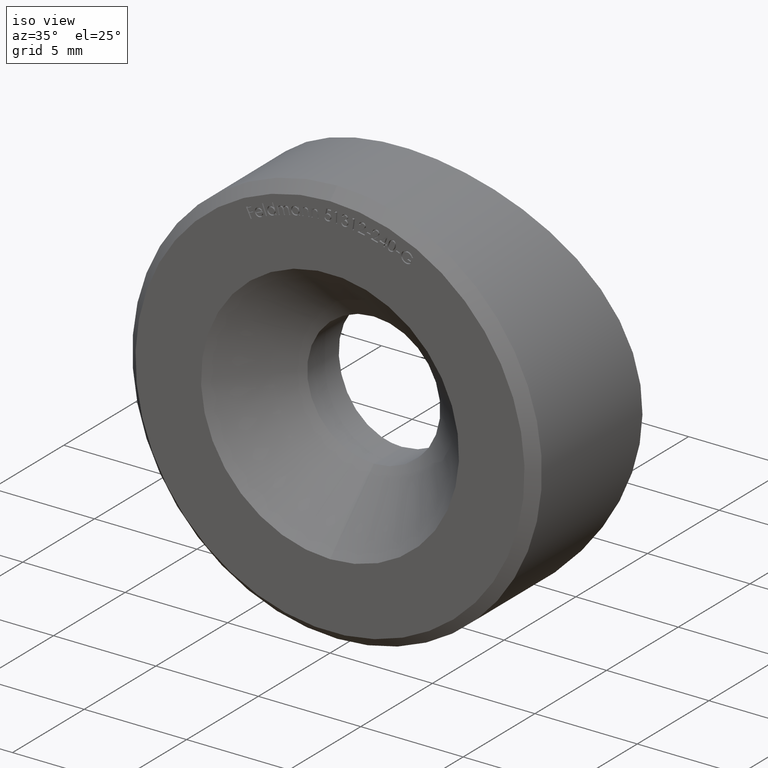
[diagram: clean part render]
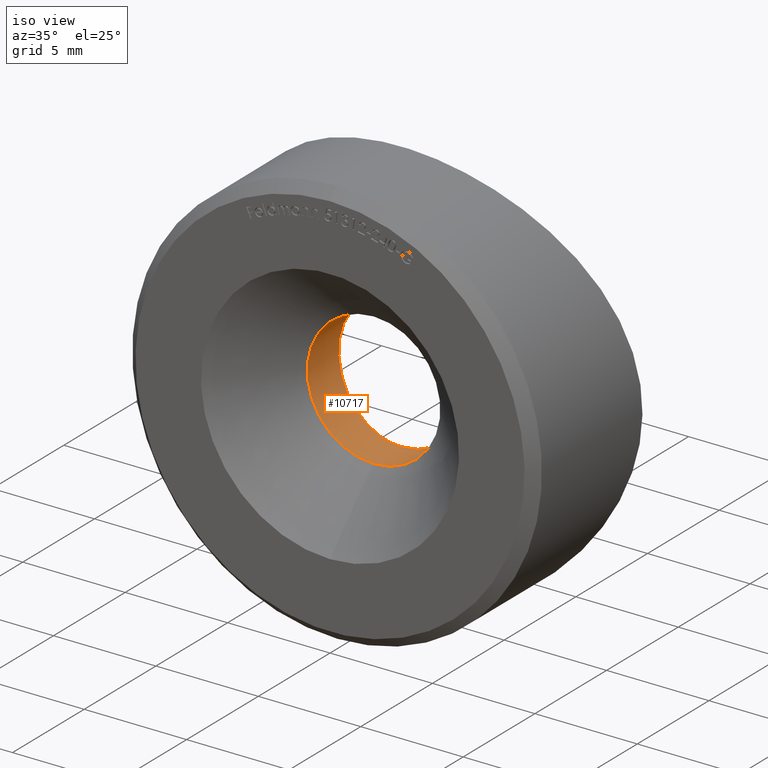
[diagram: same view with one face highlighted and labeled with its STEP entity id]
A machine part, iso view. The second image highlights one B-rep face of the part: STEP entity #10717.
In plain terms, the highlighted cylindrical surface (bore or boss wall) has radius 3.25 mm, axis along (-0, -1, -0).
Its self-contained STEP definition (entity closure, byte-faithful):
#8 = CARTESIAN_POINT ( 'NONE',  ( 3.084468863350044554, 5.225424174715231018, 1.045933533420550177 ) ) ;
#14 = VERTEX_POINT ( 'NONE', #8601 ) ;
#61 = CARTESIAN_POINT ( 'NONE',  ( -0.8474655071052364930, 5.015903916353784631, -3.144861060122668750 ) ) ;
#71 = FACE_OUTER_BOUND ( 'NONE', #6076, .T. ) ;
#107 = CARTESIAN_POINT ( 'NONE',  ( 2.147498635732049355, 5.108498590889064772, 2.448795407009364045 ) ) ;
#152 = CARTESIAN_POINT ( 'NONE',  ( -3.084331617472059417, 5.225404474577613811, -1.046272082645803181 ) ) ;
#204 = CARTESIAN_POINT ( 'NONE',  ( 0.4291155959866739256, 5.003316562383970378, 3.228558586262969765 ) ) ;
#290 = CARTESIAN_POINT ( 'NONE',  ( -0.2150499108967883488, 5.000000000000000000, -3.250000000000000888 ) ) ;
#472 = EDGE_LOOP ( 'NONE', ( #5504 ) ) ;
#831 = EDGE_CURVE ( 'NONE', #14, #14, #8356, .T. ) ;
#915 = DIRECTION ( 'NONE',  ( -0.000000000000000000, -1.000000000000000000, -0.000000000000000000 ) ) ;
#1043 = CARTESIAN_POINT ( 'NONE',  ( -3.229269677274341888, 5.247349722291168028, -0.4234125048040465189 ) ) ;
#1088 = CARTESIAN_POINT ( 'NONE',  ( 0.4264434180833555632, 5.003268988495230829, -3.228866455167879401 ) ) ;
#1130 = CARTESIAN_POINT ( 'NONE',  ( 0.8461986512866619403, 5.015867334446159731, 3.145103906425347873 ) ) ;
#1179 = CARTESIAN_POINT ( 'NONE',  ( -2.918967894088988047, 5.201750911087713369, 1.444843379730633037 ) ) ;
#1225 = CARTESIAN_POINT ( 'NONE',  ( 2.448021508383575906, 5.141276147427542575, -2.148135978368177934 ) ) ;
#1372 = CIRCLE ( 'NONE', #11058, 3.250000000000000444 ) ;
#1610 = CARTESIAN_POINT ( 'NONE',  ( 0.000000000000000000, 3.049999999999997602, -3.250000000000000444 ) ) ;
#2027 = CARTESIAN_POINT ( 'NONE',  ( -0.8423241288772209678, 5.015697776005911379, 3.146244949644531275 ) ) ;
#2075 = CARTESIAN_POINT ( 'NONE',  ( -2.586182703388971937, 5.157999613231343261, -1.979721584527842193 ) ) ;
#2119 = CARTESIAN_POINT ( 'NONE',  ( -0.4221747768704007253, 5.003162049178560444, 3.229572058187728079 ) ) ;
#2170 = CARTESIAN_POINT ( 'NONE',  ( -3.145373074388929435, 5.234590536070766298, 0.8449978764355208227 ) ) ;
#2213 = CARTESIAN_POINT ( 'NONE',  ( -2.821907254063747761, 5.188313711138199835, -1.626185099247966948 ) ) ;
#3061 = CARTESIAN_POINT ( 'NONE',  ( 1.981826496045465458, 5.092092693632163325, -2.584555703128702753 ) ) ;
#3112 = CARTESIAN_POINT ( 'NONE',  ( -1.443554947874320593, 5.048298792827389470, -2.919492594220398196 ) ) ;
#3150 = CARTESIAN_POINT ( 'NONE',  ( 1.628785365800687224, 5.061919544414683614, -2.820394063806773488 ) ) ;
#3201 = CARTESIAN_POINT ( 'NONE',  ( 0.8422358293998255530, 5.015715769217270470, -3.146120052033961834 ) ) ;
#3246 = CARTESIAN_POINT ( 'NONE',  ( -2.449360428614455021, 5.141432951849284727, -2.146600966553939838 ) ) ;
#4058 = DIRECTION ( 'NONE',  ( 0.000000000000000000, 0.000000000000000000, -1.000000000000000000 ) ) ;
#4080 = CARTESIAN_POINT ( 'NONE',  ( -2.818946742385628923, 5.187916077195380282, 1.631253392114658141 ) ) ;
#4169 = CARTESIAN_POINT ( 'NONE',  ( 2.820025938915971420, 5.188055802896705870, -1.629600005252397787 ) ) ;
#4190 = CYLINDRICAL_SURFACE ( 'NONE', #13184, 3.250000000000000444 ) ;
#4217 = CARTESIAN_POINT ( 'NONE',  ( 1.048768862925172352, 5.025041419713670798, 3.083486585384174195 ) ) ;
#4225 = ORIENTED_EDGE ( 'NONE', *, *, #831, .F. ) ;
#4260 = CARTESIAN_POINT ( 'NONE',  ( -1.631629457461084787, 5.062128828798766023, -2.818873911395462617 ) ) ;
#5085 = CARTESIAN_POINT ( 'NONE',  ( -2.146023883358506357, 5.108358818845009530, 2.449889132001904724 ) ) ;
#5139 = CARTESIAN_POINT ( 'NONE',  ( -1.052750469737838701, 5.025250148029929420, -3.082045480473469823 ) ) ;
#5183 = CARTESIAN_POINT ( 'NONE',  ( 2.584791864171175124, 5.157830648604959656, 1.981439389069279189 ) ) ;
#5227 = CARTESIAN_POINT ( 'NONE',  ( -3.146879315023292101, 5.234817270407253531, -0.8394113261485789401 ) ) ;
#5272 = CARTESIAN_POINT ( 'NONE',  ( 3.082978690918155351, 5.225206719536253708, -1.050010385649534417 ) ) ;
#5492 = FACE_OUTER_BOUND ( 'NONE', #472, .T. ) ;
#5504 = ORIENTED_EDGE ( 'NONE', *, *, #5802, .T. ) ;
#5802 = EDGE_CURVE ( 'NONE', #13060, #13060, #1372, .T. ) ;
#6032 = CARTESIAN_POINT ( 'NONE',  ( 0.000000000000000000, 8.165231402412532091, 0.000000000000000000 ) ) ;
#6076 = EDGE_LOOP ( 'NONE', ( #4225 ) ) ;
#6110 = CARTESIAN_POINT ( 'NONE',  ( 1.442239263721961207, 5.048196862764303461, -2.920240353027569569 ) ) ;
#6161 = CARTESIAN_POINT ( 'NONE',  ( -2.921563470123207384, 5.202113776104789977, -1.439532454480769497 ) ) ;
#6199 = CARTESIAN_POINT ( 'NONE',  ( 3.229158249383776713, 5.247331311357136485, -0.4252205798870901110 ) ) ;
#6246 = CARTESIAN_POINT ( 'NONE',  ( -0.2109978030792261927, 4.999987487099255112, 3.250081622620013988 ) ) ;
#6292 = CARTESIAN_POINT ( 'NONE',  ( -2.583132212986961829, 5.157624671021097562, 1.983652271927015764 ) ) ;
#7062 = DIRECTION ( 'NONE',  ( -0.000000000000000000, -1.000000000000000000, -0.000000000000000000 ) ) ;
#7131 = CARTESIAN_POINT ( 'NONE',  ( -3.228460125727636854, 5.247224265413160005, 0.4294629260577603747 ) ) ;
#7176 = CARTESIAN_POINT ( 'NONE',  ( -0.4275380518344800151, 5.003270632450825595, -3.228863590714631027 ) ) ;
#7221 = CARTESIAN_POINT ( 'NONE',  ( 2.148733871589560973, 5.108636782950790156, -2.447496728527361665 ) ) ;
#7265 = CARTESIAN_POINT ( 'NONE',  ( 3.250120148735857306, 5.250615306561056350, 0.2104497566037686895 ) ) ;
#7307 = CARTESIAN_POINT ( 'NONE',  ( 3.228949414987504429, 5.247299707505719724, 0.4261378977443253668 ) ) ;
#8069 = CARTESIAN_POINT ( 'NONE',  ( 1.761828530288944705E-16, 5.000000000000000000, -3.250000000000000000 ) ) ;
#8163 = CARTESIAN_POINT ( 'NONE',  ( -3.249818524630295968, 5.250568513912571511, 0.2175347884361278628 ) ) ;
#8209 = CARTESIAN_POINT ( 'NONE',  ( 2.920790955711716652, 5.202007454047537394, -1.440923180346524779 ) ) ;
#8250 = CARTESIAN_POINT ( 'NONE',  ( -1.438401774077969986, 5.047945617049649059, 2.922041642359909375 ) ) ;
#8302 = CARTESIAN_POINT ( 'NONE',  ( 0.2150499108967887096, 5.000000000000000000, -3.249999999999999112 ) ) ;
#8356 = B_SPLINE_CURVE_WITH_KNOTS ( 'NONE', 3,
 ( #8069, #8302, #1088, #3201, #12173, #6110, #3150, #3061, #7221, #1225, #11358, #4169, #8209, #5272, #12271, #6199, #12321, #7265, #7307, #10245, #8, #10200, #11269, #5183, #12216, #107, #10160, #11219, #10290, #4217, #1130, #204, #9127, #6246, #2119, #2027, #9314, #8250, #12366, #9219, #5085, #11308, #6292, #4080, #1179, #11176, #2170, #7131, #8163, #9263, #1043, #5227, #152, #6161, #2213, #2075, #3246, #10333, #9170, #4260, #3112, #5139, #61, #7176, #290, #10411 ),
 .UNSPECIFIED., .T., .F.,
 ( 4, 2, 2, 2, 2, 2, 2, 2, 2, 2, 2, 2, 2, 2, 2, 2, 2, 2, 2, 2, 2, 2, 2, 2, 2, 2, 2, 2, 2, 2, 2, 2, 4 ),
 ( 0.000000000000000000, 0.0006359210278306045867, 0.001271842055661209173, 0.001907763083491813760, 0.002543684111322418347, 0.003179605139153022716, 0.003815526166983627520, 0.004451447194814232323, 0.005087368222644836693, 0.005723289250475441063, 0.006359210278306045433, 0.006995131306136650670, 0.007631052333967255040, 0.008266973361797859410, 0.008902894389628464647, 0.009538815417459068149, 0.01017473644528967339, 0.01081065747312027862, 0.01144657850095088213, 0.01208249952878148736, 0.01271842055661209087, 0.01335434158444269610, 0.01399026261227330134, 0.01462618364010390484, 0.01526210466793451008, 0.01589802569576511532, 0.01653394672359571882, 0.01716986775142632232, 0.01780578877925692929, 0.01844170980708753280, 0.01907763083491813630, 0.01971355186274874327, 0.02034947289057934677 ),
 .UNSPECIFIED. ) ;
#8601 = CARTESIAN_POINT ( 'NONE',  ( 0.000000000000000000, 5.000000000000000888, -3.250000000000000444 ) ) ;
#9127 = CARTESIAN_POINT ( 'NONE',  ( 0.2135048230366514699, 5.000012587018064281, 3.249917893906966171 ) ) ;
#9170 = CARTESIAN_POINT ( 'NONE',  ( -1.987048177762577250, 5.092573537354079249, -2.580679049020069726 ) ) ;
#9219 = CARTESIAN_POINT ( 'NONE',  ( -1.982543221950620493, 5.092152875658099376, 2.584088967683312976 ) ) ;
#9233 = DIRECTION ( 'NONE',  ( 0.000000000000000000, 0.000000000000000000, -1.000000000000000000 ) ) ;
#9263 = CARTESIAN_POINT ( 'NONE',  ( -3.250179184896289986, 5.250624465169170030, -0.2120780358195728799 ) ) ;
#9314 = CARTESIAN_POINT ( 'NONE',  ( -1.047135578693864755, 5.024969625457599065, 3.083964024302084272 ) ) ;
#10160 = CARTESIAN_POINT ( 'NONE',  ( 1.983721702801613640, 5.092276730629055947, 2.583041865695764994 ) ) ;
#10180 = CARTESIAN_POINT ( 'NONE',  ( 0.000000000000000000, 3.049999999999997602, 0.000000000000000000 ) ) ;
#10200 = CARTESIAN_POINT ( 'NONE',  ( 2.921457232206360555, 5.202098512946935038, 1.439796084762929640 ) ) ;
#10245 = CARTESIAN_POINT ( 'NONE',  ( 3.145907283640577479, 5.234670733938490805, 0.8431934506264089357 ) ) ;
#10290 = CARTESIAN_POINT ( 'NONE',  ( 1.441976982013438491, 5.048179998212295239, 2.920360942320131326 ) ) ;
#10333 = CARTESIAN_POINT ( 'NONE',  ( -2.150385480687889039, 5.108806223564106297, -2.446038532672659915 ) ) ;
#10411 = CARTESIAN_POINT ( 'NONE',  ( 1.761828530288944705E-16, 5.000000000000000000, -3.250000000000000000 ) ) ;
#10717 = ADVANCED_FACE ( 'NONE', ( #5492, #71 ), #4190, .F. ) ;
#11058 = AXIS2_PLACEMENT_3D ( 'NONE', #10180, #7062, #4058 ) ;
#11176 = CARTESIAN_POINT ( 'NONE',  ( -3.082691481000265910, 5.225161464275912770, 1.051170391345816135 ) ) ;
#11219 = CARTESIAN_POINT ( 'NONE',  ( 1.632114013627159022, 5.062182296721556618, 2.818414611199890896 ) ) ;
#11269 = CARTESIAN_POINT ( 'NONE',  ( 2.819839704047509166, 5.188038072627501940, 1.629648758818288190 ) ) ;
#11308 = CARTESIAN_POINT ( 'NONE',  ( -2.445886756578095511, 5.141026041220951193, 2.150584395238201552 ) ) ;
#11358 = CARTESIAN_POINT ( 'NONE',  ( 2.582435166560727691, 5.157534035934569161, -1.984734512167307008 ) ) ;
#12173 = CARTESIAN_POINT ( 'NONE',  ( 1.048813183214362788, 5.025042598462899690, -3.083479969123783970 ) ) ;
#12216 = CARTESIAN_POINT ( 'NONE',  ( 2.450216287825434769, 5.141518995334100950, 2.145877321455287756 ) ) ;
#12271 = CARTESIAN_POINT ( 'NONE',  ( 3.145545920331514367, 5.234615933909436691, -0.8448765615216186076 ) ) ;
#12321 = CARTESIAN_POINT ( 'NONE',  ( 3.249878801187870536, 5.250577864950491502, -0.2141444812808914189 ) ) ;
#12366 = CARTESIAN_POINT ( 'NONE',  ( -1.627814602934459787, 5.061837651537345550, 2.821030492263118195 ) ) ;
#13060 = VERTEX_POINT ( 'NONE', #1610 ) ;
#13184 = AXIS2_PLACEMENT_3D ( 'NONE', #6032, #915, #9233 ) ;